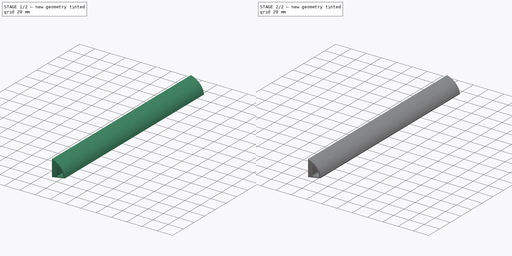
[diagram: build sequence overview — one tinted view per stage of 2, left to right]
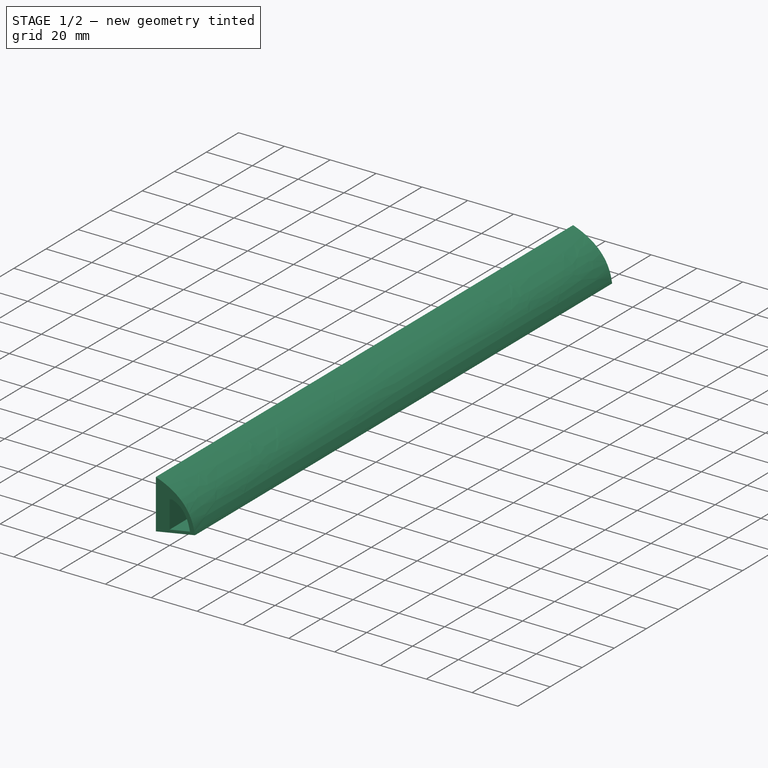
[diagram: stage 1 of 2 — iso view after this stage's code; geometry added in this stage tinted green]
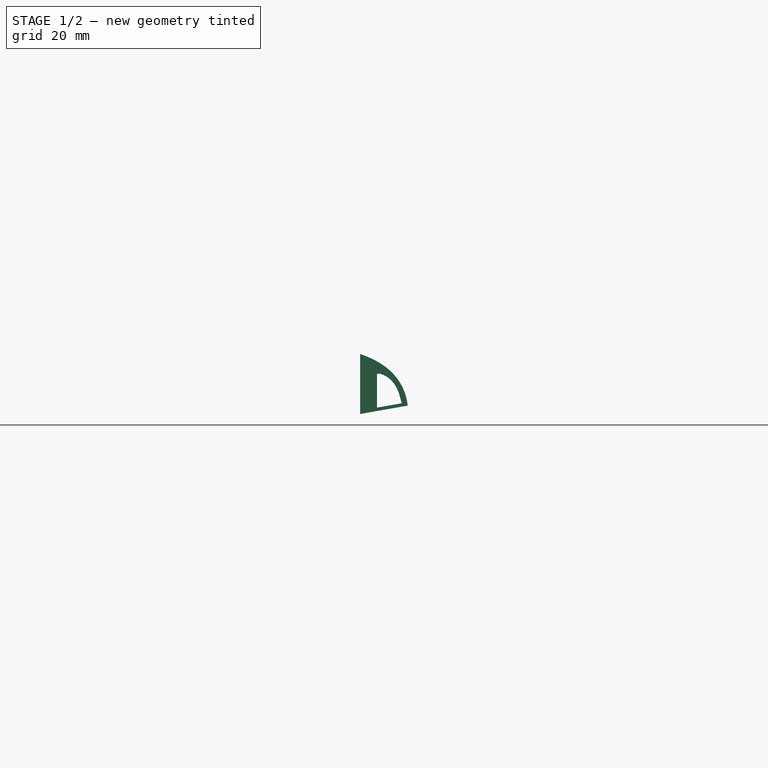
[diagram: stage 1 of 2 — front view after this stage's code; geometry added in this stage tinted green]
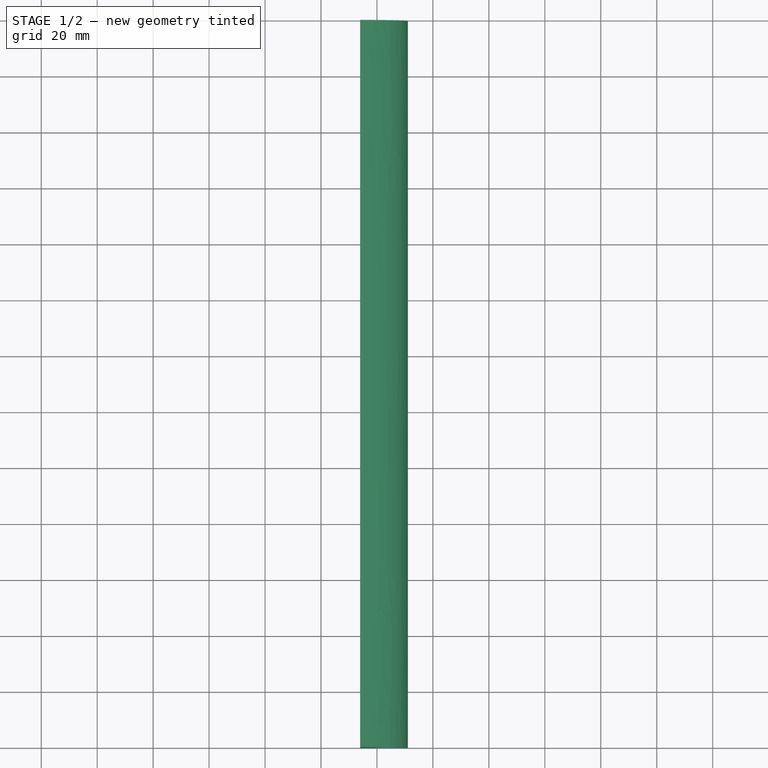
[diagram: stage 1 of 2 — top view after this stage's code; geometry added in this stage tinted green]
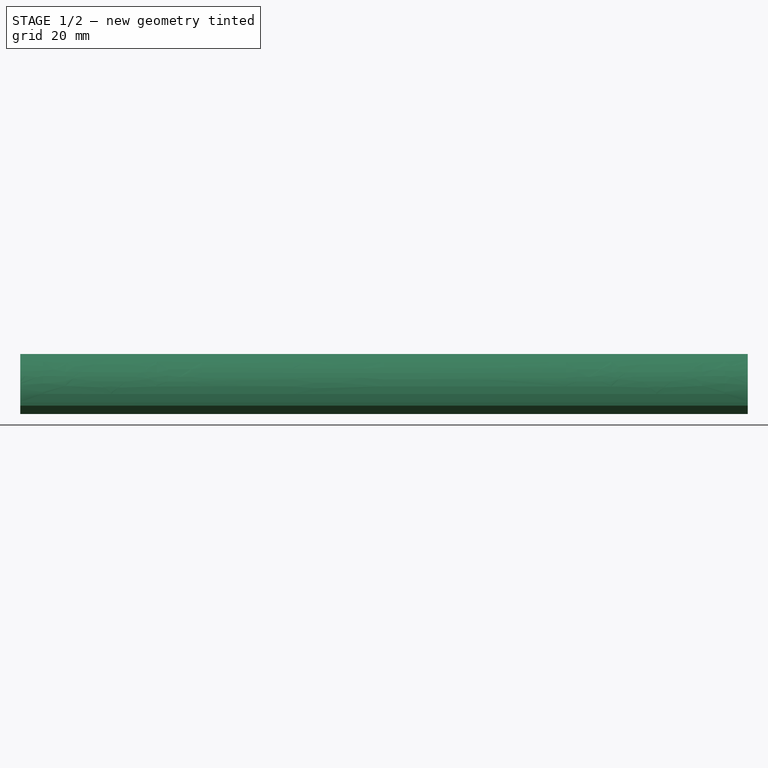
[diagram: stage 1 of 2 — right view after this stage's code; geometry added in this stage tinted green]
FCSTD DOCUMENT  (FreeCAD 1.1R)
Label: led mount
License: All rights reserved
LicenseURL: https://en.wikipedia.org/wiki/All_rights_reserved
objects: Sketcher::SketchObject×2, App::Point×1, PartDesign::Pad×1, PartDesign::Fillet×1, PartDesign::Body×1
note: 11 computed .brp shape members not serialized (recipe doc carries the construction recipe); baked Part::Feature solids carry a one-line shape summary decoded from their .brp

FEATURE [App::Point] Origin001
  Role = Origin
FEATURE [Sketcher::SketchObject] Sketch
  ArcFitTolerance = 1e-06
  AttachmentSupport = -> [Origin]
  ExternalTypes = [0]
  FullyConstrained = true
  MakeInternals = false
  MapMode = 5
  Placement = pos=(0,0,0) rot=(1,0,0;1.5708rad)
  sketch-geometry (13):
    g0: ArcOfCircle [constr] CenterX=0 CenterY=0 CenterZ=0 NormalX=0 NormalY=0 NormalZ=1 AngleXU=0 Radius=9 StartAngle=0 EndAngle=1.5708
    g1: LineSegment StartX=6e-16 StartY=9 StartZ=0 EndX=0 EndY=0 EndZ=0
    g2: ArcOfCircle [constr] CenterX=0 CenterY=0 CenterZ=0 NormalX=0 NormalY=0 NormalZ=1 AngleXU=0 Radius=9.70711 StartAngle=0 EndAngle=1.5708
    g3: LineSegment StartX=9.70711 StartY=0 StartZ=0 EndX=9.70711 EndY=-2 EndZ=0
    g4: LineSegment StartX=9.70711 StartY=-2 StartZ=0 EndX=-2 EndY=-2 EndZ=0
    g5: LineSegment StartX=-2 StartY=-2 StartZ=0 EndX=-2 EndY=9.70711 EndZ=0
    g6: LineSegment [constr] StartX=-2 StartY=9.70711 StartZ=0 EndX=4e-16 EndY=9.70711 EndZ=0
    g7: LineSegment StartX=-2 StartY=9.70711 StartZ=0 EndX=0.707107 EndY=9.70711 EndZ=0
    g8: LineSegment StartX=0.707107 StartY=9.70711 StartZ=0 EndX=9.70711 EndY=0.707107 EndZ=0
    g9: LineSegment StartX=9.70711 StartY=0.707107 StartZ=0 EndX=9.70711 EndY=0 EndZ=0
    g10: LineSegment StartX=6e-16 StartY=9 StartZ=0 EndX=9 EndY=0 EndZ=0
    g11: LineSegment StartX=9 StartY=0 StartZ=0 EndX=0 EndY=0 EndZ=0
    g12: LineSegment [constr] StartX=9 StartY=0 StartZ=0 EndX=9.70711 EndY=0.707107 EndZ=0
  constraints (35):
    c: Coincident(g0,g-1)
    c: PointOnObject(g0,g-1)
    c: PointOnObject(g0,g-2)
    c: Coincident(g1,g0)
    c: Coincident(g1,g0)
    c: Coincident(g2,g0)
    c: PointOnObject(g2,g-2)
    c: PointOnObject(g2,g-1)
    c: Coincident(g3,g2)
    c: Coincident(g3,g4)
    c: Coincident(g4,g5)
    c: Parallel(g5,g3)
    c: Coincident(g5,g6)
    c: Coincident(g6,g2)
    c: Horizontal(g6)
    c: Equal(g6,g3)
    c: Distance(g6,g6) = 2
    c: Perpendicular(g-1,g3)
    c: Coincident(g7,g5)
    c: Horizontal(g7)
    c: Coincident(g7,g8)
    c: Coincident(g8,g9)
    c: Coincident(g9,g2)
    c: Coincident(g10,g0)
    c: Coincident(g10,g0)
    c: Parallel(g8,g10)
    c: Coincident(g11,g0)
    c: Coincident(g11,g0)
    c: Distance(g11,g11) = 9
    c: Vertical(g9)
    c: Distance(g10,g8) = 1
    c: Coincident(g12,g0)
    c: Coincident(g12,g8)
    c: Angle(g12,g11) = 2.35619
    c: Perpendicular(g4,g5)
FEATURE [Sketcher::SketchObject] Sketch001
  ArcFitTolerance = 1e-06
  AttachmentSupport = -> [Sketch]
  ExternalTypes = [0]
  FullyConstrained = false
  MakeInternals = false
  MapMode = 2
  Placement = pos=(0,0,0) rot=(1,0,0;1.5708rad)
  sketch-geometry (24):
    g0: LineSegment StartX=0 StartY=-5 StartZ=0 EndX=0 EndY=7 EndZ=0
    g1: LineSegment StartX=0 StartY=-5 StartZ=0 EndX=8.86327 EndY=-3.43717 EndZ=0
    g2: LineSegment [constr] StartX=7.50454 StartY=4.26857 StartZ=0 EndX=8.86327 EndY=-3.43717 EndZ=0
    g3: LineSegment [constr] StartX=7.50454 StartY=4.26857 StartZ=0 EndX=0 EndY=7 EndZ=0
    g4: LineSegment StartX=-6 StartY=14.1661 StartZ=0 EndX=-6 EndY=-7.27647 EndZ=0
    g5: LineSegment [constr] StartX=0 StartY=8.2 StartZ=0 EndX=0 EndY=7 EndZ=0
    g6: LineSegment [constr] StartX=8.86327 StartY=-3.43717 StartZ=0 EndX=10.8329 EndY=-3.08987 EndZ=0
    g7: LineSegment StartX=11.0413 StartY=-4.27164 StartZ=0 EndX=10.8329 EndY=-3.08987 EndZ=0
    g8: Circle [constr] CenterX=-6 CenterY=14.1661 CenterZ=0 NormalX=0 NormalY=0 NormalZ=1 AngleXU=0 Radius=1
    g9: Circle [constr] CenterX=8.66668 CenterY=9.19528 CenterZ=0 NormalX=0 NormalY=0 NormalZ=1 AngleXU=0 Radius=1
    g10: Circle [constr] CenterX=10.8329 CenterY=-3.08987 CenterZ=0 NormalX=0 NormalY=0 NormalZ=1 AngleXU=0 Radius=1
    g11: BSplineCurve PolesCount=3 KnotsCount=2 Degree=2 IsPeriodic=0
    g12: GeomPoint [constr] X=-6 Y=14.1661 Z=0
    g13: GeomPoint [constr] X=10.8329 Y=-3.08987 Z=0
    g14: LineSegment [constr] StartX=8.66668 StartY=9.19528 StartZ=0 EndX=10.8329 EndY=-3.08987 EndZ=0
    g15: LineSegment StartX=11.0413 StartY=-4.27164 StartZ=0 EndX=-6 EndY=-7.27647 EndZ=0
    g16: LineSegment StartX=0 StartY=7 StartZ=0 EndX=0.984808 EndY=7.17365 EndZ=0
    g17: Circle [constr] CenterX=0.984808 CenterY=7.17365 CenterZ=0 NormalX=0 NormalY=0 NormalZ=1 AngleXU=0 Radius=1
    g18: Circle [constr] CenterX=7.30639 CenterY=5.39233 CenterZ=0 NormalX=0 NormalY=0 NormalZ=1 AngleXU=0 Radius=1
    g19: Circle [constr] CenterX=8.86327 CenterY=-3.43717 CenterZ=0 NormalX=0 NormalY=0 NormalZ=1 AngleXU=0 Radius=1
    g20: BSplineCurve PolesCount=3 KnotsCount=2 Degree=2 IsPeriodic=0
    g21: GeomPoint [constr] X=0.984808 Y=7.17365 Z=0
    g22: GeomPoint [constr] X=8.86327 Y=-3.43717 Z=0
    g23: LineSegment [constr] StartX=7.30639 StartY=5.39233 StartZ=0 EndX=8.86327 EndY=-3.43717 EndZ=0
  constraints (55):
    c: PointOnObject(g0,g-2)
    c: PointOnObject(g0,g-2)
    c: Distance(g1) = 9
    c: Coincident(g1,g0)
    c: Angle(g1,g0) = 1.39626
    c: DistanceY(g0,g0) = 12
    c: Perpendicular(g1,g2)
    c: DistanceY(g0,g-1) = 5
    c: Coincident(g3,g2)
    c: Angle(g3,g0) = 1.91986
    c: Vertical(g4)
    c: Distance(g0,g4) = 6
    c: Coincident(g5,g0)
    c: Vertical(g5)
    c: DistanceY(g5,g5) = 1.2
    c: Coincident(g6,g1)
    c: Coincident(g7,g6)
    c: Perpendicular(g7,g6)
    c: Distance(g1,g6) = 2
    c: Weight(g8) = 1
    c: Equal(g8,g9)
    c: Equal(g8,g10)
    c: InternalAlignment(g8,g11)
    c: InternalAlignment(g9,g11)
    c: InternalAlignment(g10,g11)
    c: InternalAlignment(g12,g11)
    c: InternalAlignment(g13,g11)
    c: Coincident(g8,g4)
    c: Coincident(g10,g6)
    c: Coincident(g14,g9)
    c: Coincident(g14,g11)
    c: Perpendicular(g14,g6)
    c: Perpendicular(g14,g1)
    c: Coincident(g15,g7)
    c: Coincident(g4,g15)
    c: Parallel(g15,g1)
    c: Distance(g15,g1) = 1.2
    c: Coincident(g16,g3)
    c: Perpendicular(g16,g2)
    c: Weight(g17) = 1
    c: Equal(g17,g18)
    c: Equal(g17,g19)
    c: InternalAlignment(g17,g20)
    c: InternalAlignment(g18,g20)
    c: InternalAlignment(g19,g20)
    c: InternalAlignment(g21,g20)
    c: InternalAlignment(g22,g20)
    c: Coincident(g17,g16)
    c: Coincident(g19,g2)
    c: Coincident(g3,g0)
    c: Coincident(g20,g1)
    c: Distance(g16,g16) = 1
    c: Coincident(g23,g18)
    c: Coincident(g23,g1)
    c: Perpendicular(g23,g1)
FEATURE [PartDesign::Pad] Pad
  Direction = (0,-1,0)
  Length = 260
  Length2 = 10
  Placement = pos=(0,0,0) rot=(1,0,0;1.5708rad)
  Profile = -> Sketch001
  ReferenceAxis = -> Sketch001 [N_Axis]
  Refine = true
  SideType = 0
  Suppressed = false
  Type = 0
  Type2 = 0
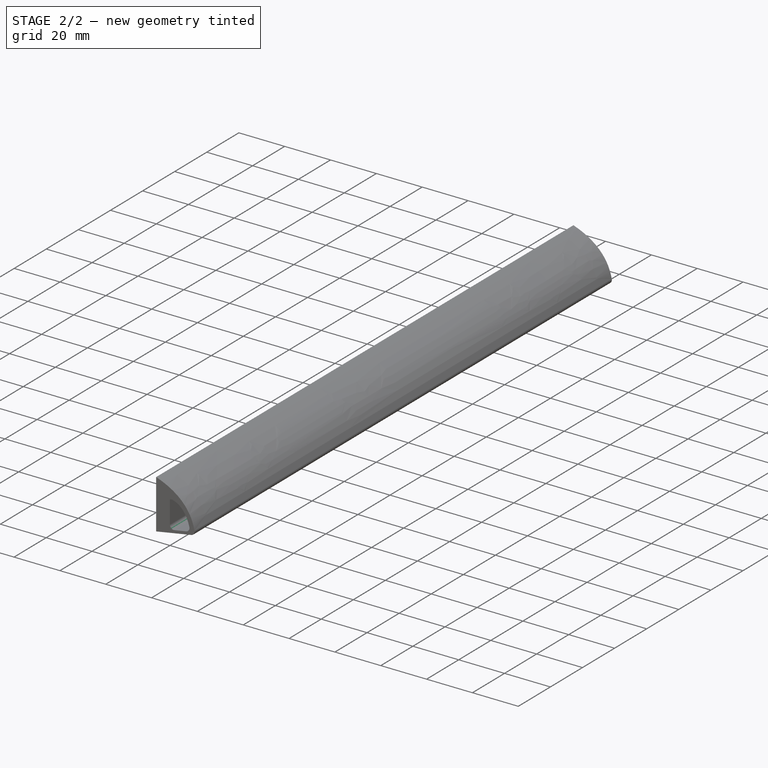
[diagram: stage 2 of 2 — iso view after this stage's code; geometry added in this stage tinted green]
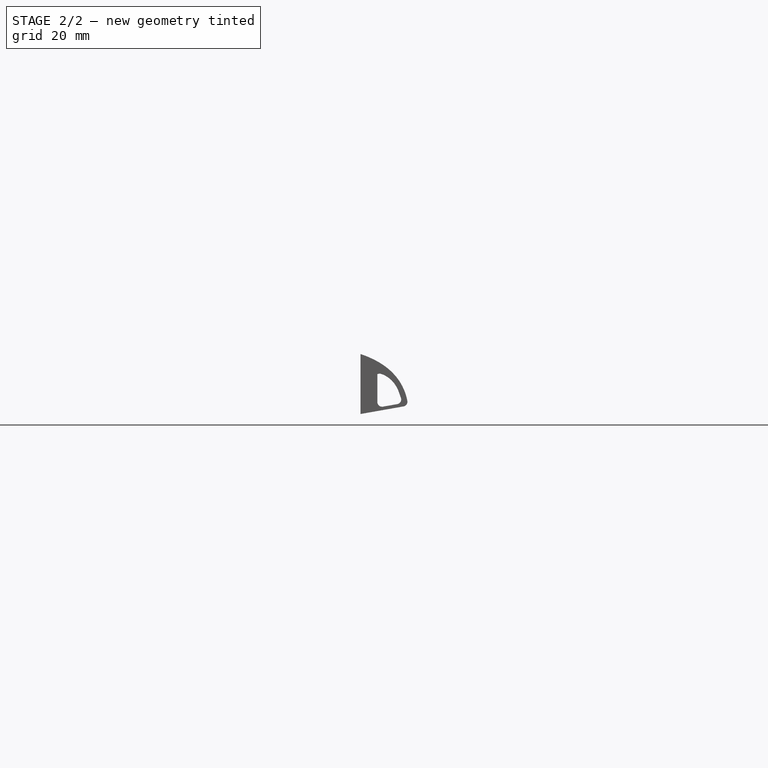
[diagram: stage 2 of 2 — front view after this stage's code; geometry added in this stage tinted green]
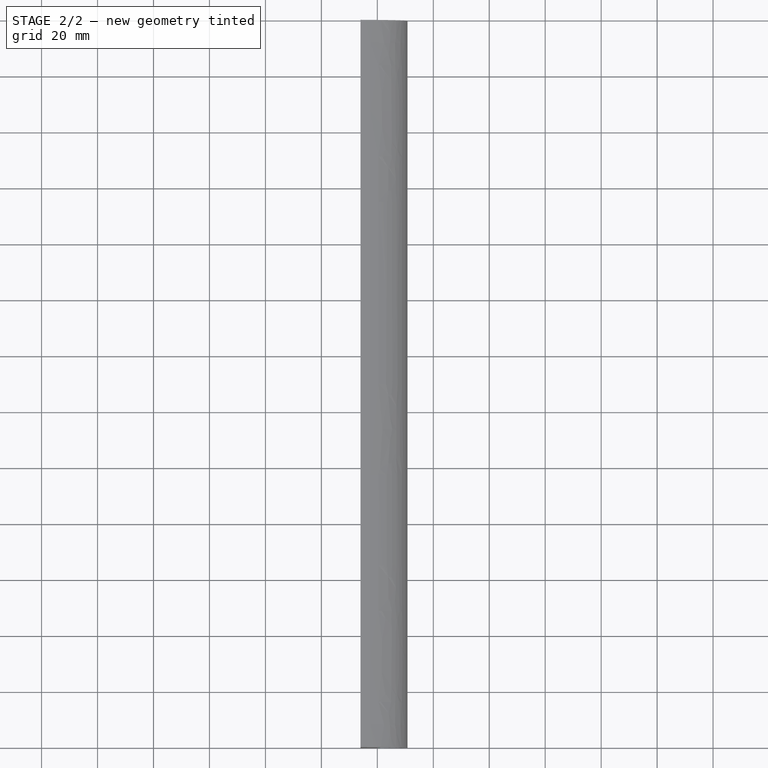
[diagram: stage 2 of 2 — top view after this stage's code; geometry added in this stage tinted green]
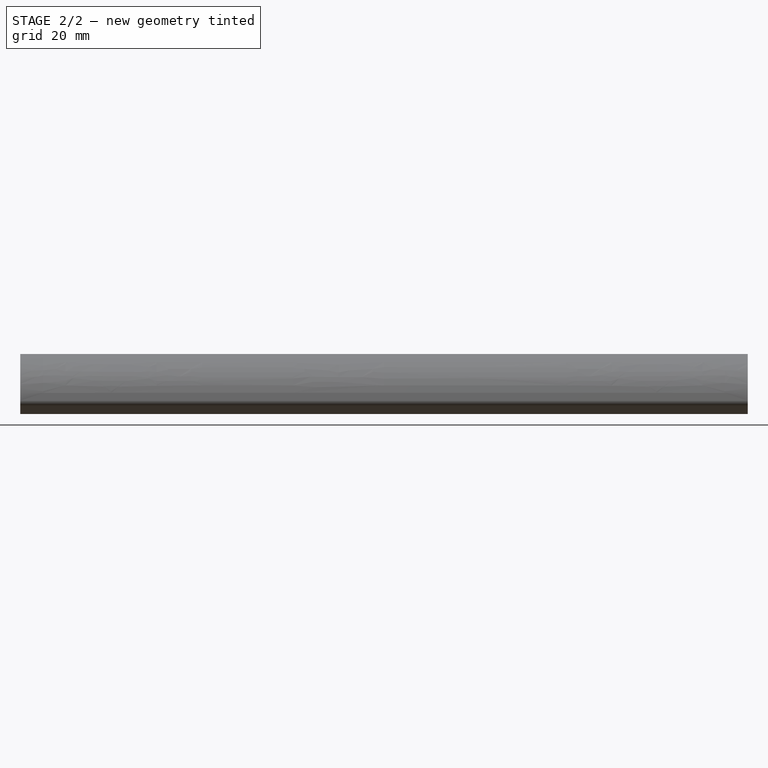
[diagram: stage 2 of 2 — right view after this stage's code; geometry added in this stage tinted green]
FEATURE [PartDesign::Fillet] Fillet
  Base = -> Pad [Edge20,Edge13,Edge1]
  BaseFeature = -> Pad
  Placement = pos=(0,0,0) rot=(1,0,0;1.5708rad)
  Radius = 1.7
  Refine = true
  SupportTransform = false
  Suppressed = false
  UseAllEdges = false
FEATURE [PartDesign::Body] Body  label="mount"
  AllowCompound = false
  Group = -> [Sketch,Sketch001,Pad,Fillet]
  Origin = -> Origin
  Tip = -> Fillet
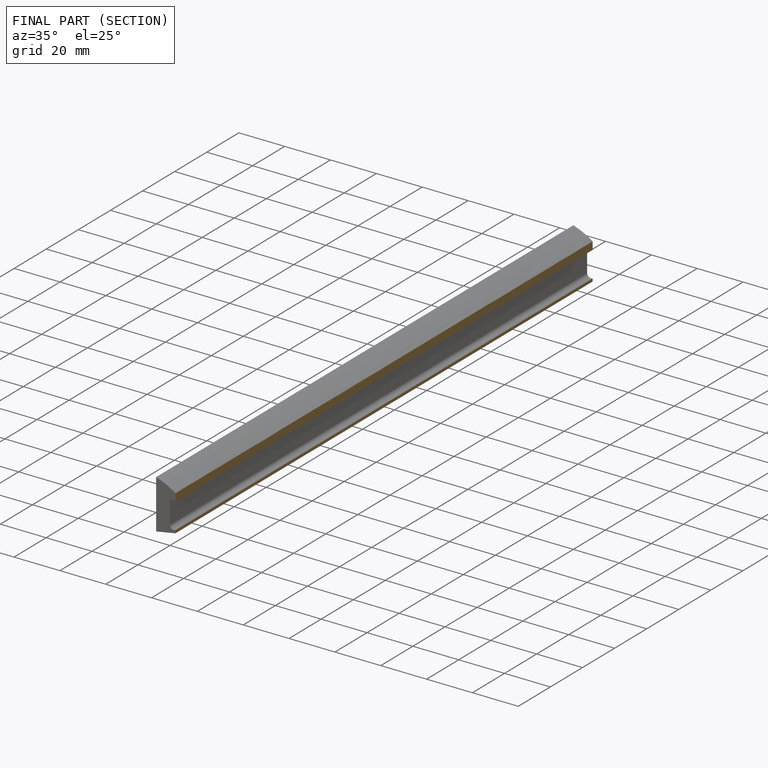
[diagram: finished part — half-section view (interior)]
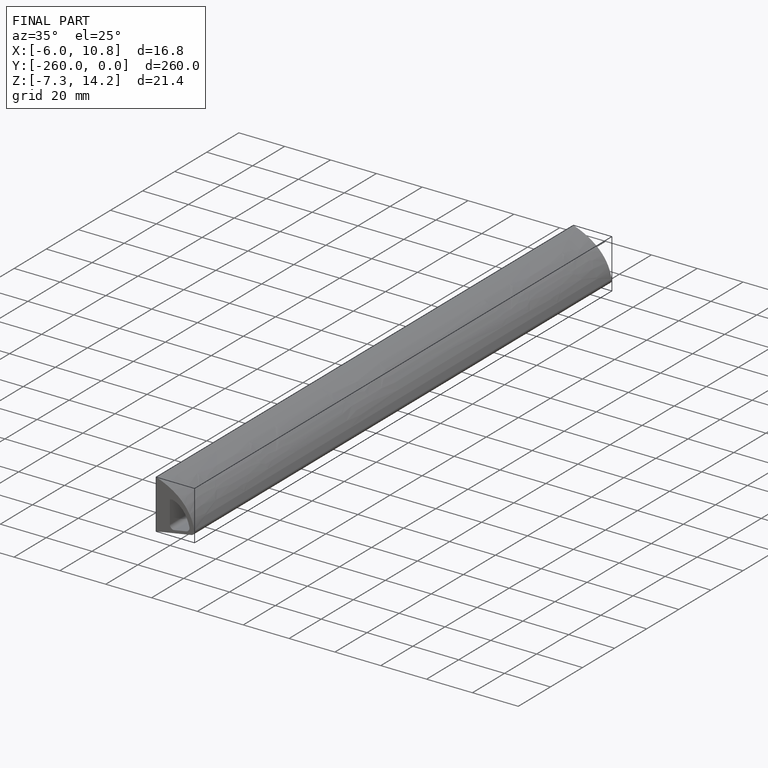
[diagram: finished part — iso view with bounding-box wireframe]
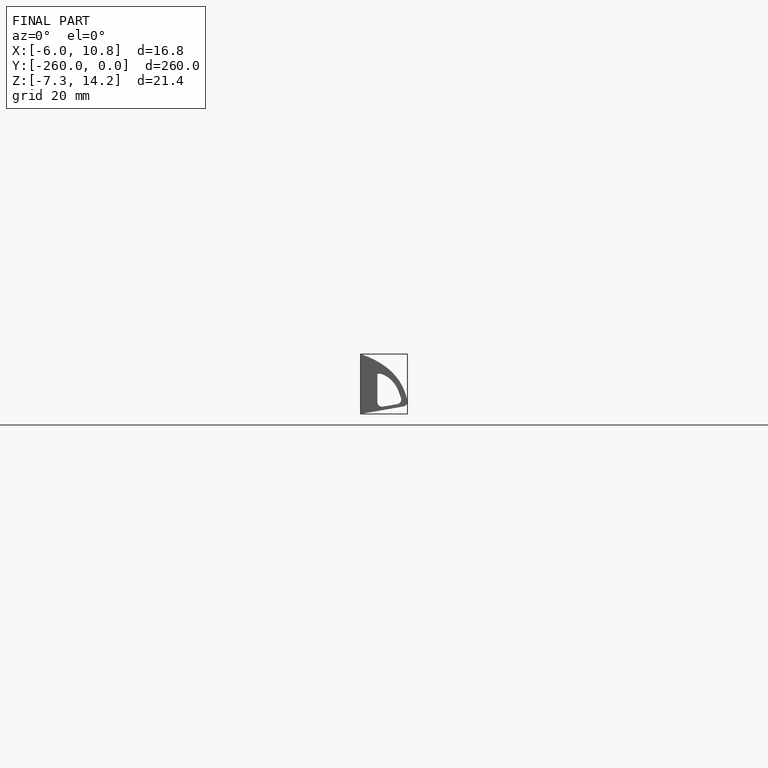
[diagram: finished part — front view with bounding-box wireframe]
